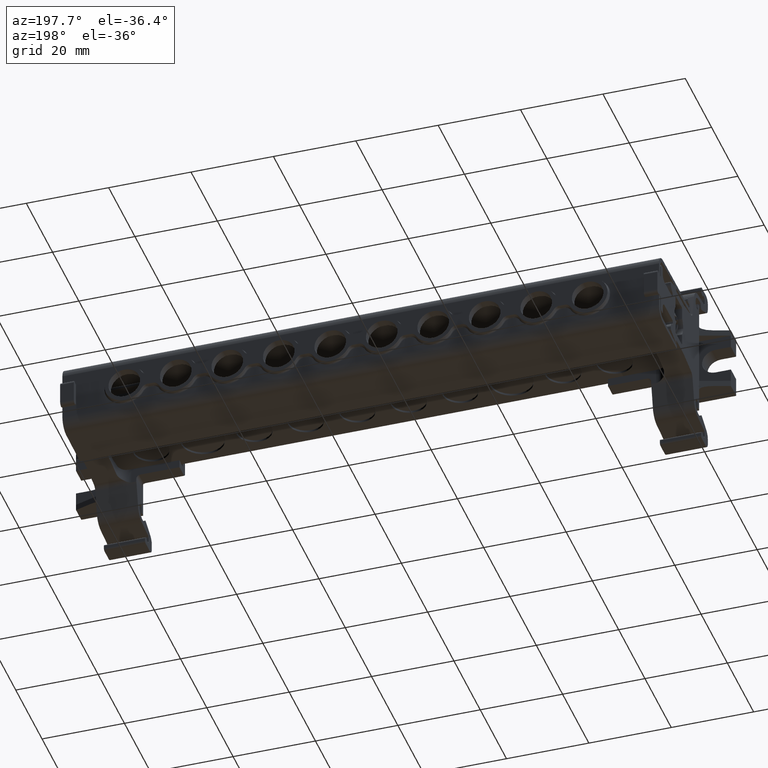
[diagram: clean part render]
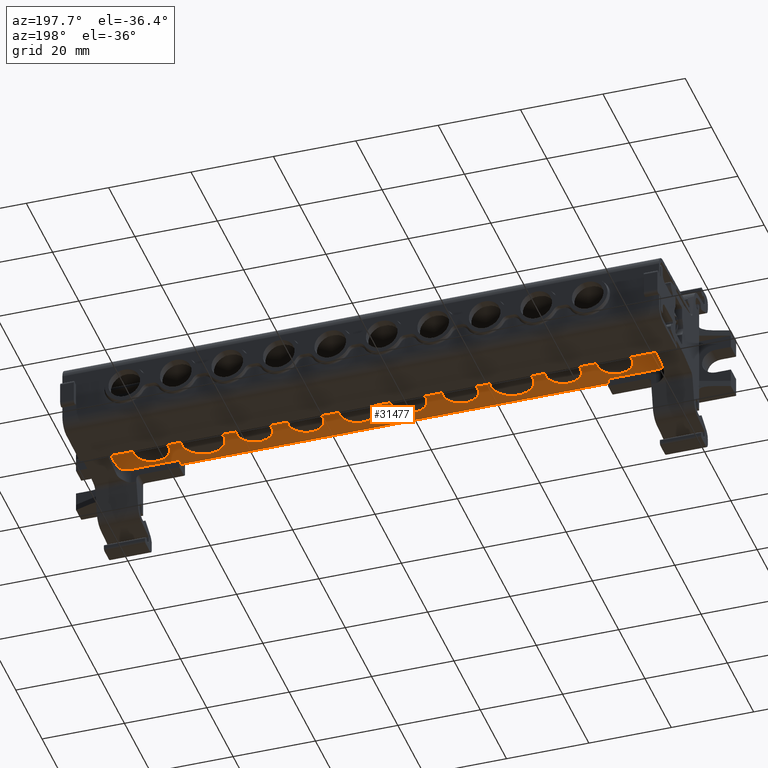
[diagram: same view with one face highlighted and labeled with its STEP entity id]
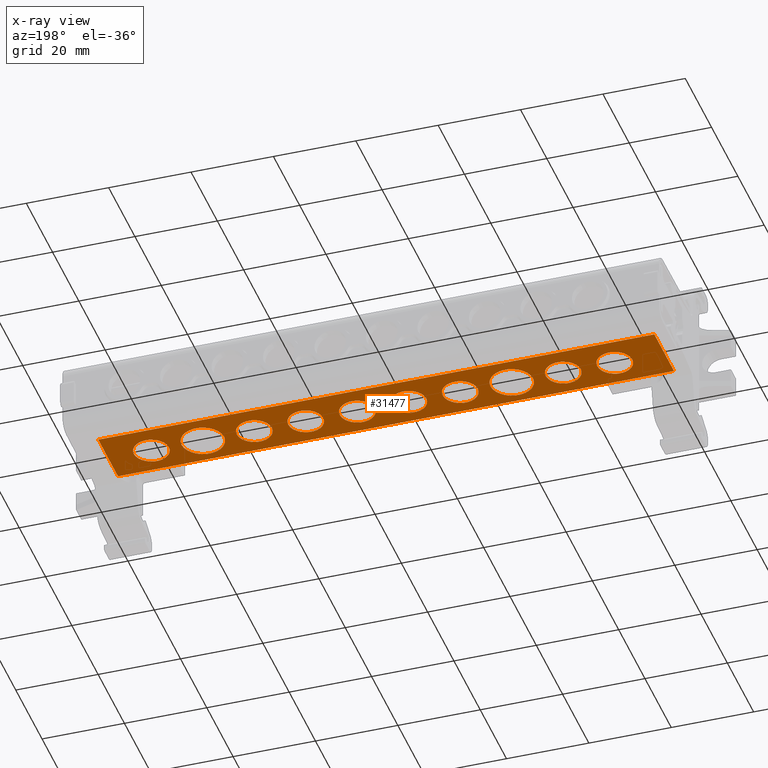
[diagram: x-ray of the same camera — body ghosted, the highlighted face saturated]
A machine part, auxiliary view. The second image highlights one B-rep face of the part: STEP entity #31477.
The next image is the same camera in x-ray: the body ghosted, the highlighted face saturated — about 0% of this face is hidden behind the body in this view.
In plain terms, the highlighted planar face has unit normal (0, 0, -1).
Its self-contained STEP definition (entity closure, byte-faithful):
#1507 = AXIS2_PLACEMENT_3D ( 'NONE', #18375, #18392, #18376 ) ;
#1508 = AXIS2_PLACEMENT_3D ( 'NONE', #29970, #29975, #30040 ) ;
#1534 = AXIS2_PLACEMENT_3D ( 'NONE', #29972, #27902, #27903 ) ;
#1542 = AXIS2_PLACEMENT_3D ( 'NONE', #28596, #28826, #28863 ) ;
#1543 = CIRCLE ( 'NONE', #1507, 4.250000000000005300 ) ;
#1545 = CIRCLE ( 'NONE', #1508, 4.250000000000006200 ) ;
#1546 = CIRCLE ( 'NONE', #1534, 4.250000000000003600 ) ;
#1554 = CIRCLE ( 'NONE', #1542, 4.250000000000007100 ) ;
#1584 = CIRCLE ( 'NONE', #1622, 4.250000000000003600 ) ;
#1585 = AXIS2_PLACEMENT_3D ( 'NONE', #18497, #18462, #18494 ) ;
#1587 = AXIS2_PLACEMENT_3D ( 'NONE', #18468, #18476, #18493 ) ;
#1592 = CIRCLE ( 'NONE', #1625, 4.250000000000007100 ) ;
#1594 = AXIS2_PLACEMENT_3D ( 'NONE', #18469, #18492, #18471 ) ;
#1612 = CIRCLE ( 'NONE', #1587, 4.250000000000003600 ) ;
#1622 = AXIS2_PLACEMENT_3D ( 'NONE', #18527, #17445, #17421 ) ;
#1625 = AXIS2_PLACEMENT_3D ( 'NONE', #18449, #18436, #18433 ) ;
#1627 = CIRCLE ( 'NONE', #1585, 5.149999999999995000 ) ;
#1630 = CIRCLE ( 'NONE', #1594, 5.150000000000002100 ) ;
#1636 = AXIS2_PLACEMENT_3D ( 'NONE', #17581, #17547, #17553 ) ;
#1660 = CIRCLE ( 'NONE', #1636, 4.250000000000003600 ) ;
#1830 = VECTOR ( 'NONE', #23456, 1000.000000000000000 ) ;
#1833 = VECTOR ( 'NONE', #23298, 1000.000000000000000 ) ;
#1844 = VECTOR ( 'NONE', #23442, 1000.000000000000000 ) ;
#1845 = VECTOR ( 'NONE', #23285, 1000.000000000000000 ) ;
#3574 = VERTEX_POINT ( 'NONE', #12729 ) ;
#3576 = VERTEX_POINT ( 'NONE', #12731 ) ;
#3578 = VERTEX_POINT ( 'NONE', #12734 ) ;
#3591 = VERTEX_POINT ( 'NONE', #12760 ) ;
#3600 = VERTEX_POINT ( 'NONE', #12802 ) ;
#3606 = VERTEX_POINT ( 'NONE', #12771 ) ;
#3621 = VERTEX_POINT ( 'NONE', #12777 ) ;
#3624 = VERTEX_POINT ( 'NONE', #12795 ) ;
#3625 = VERTEX_POINT ( 'NONE', #12780 ) ;
#4184 = EDGE_CURVE ( 'NONE', #33892, #3574, #20563, .T. ) ;
#4196 = EDGE_CURVE ( 'NONE', #32946, #32816, #7205, .T. ) ;
#4198 = EDGE_CURVE ( 'NONE', #3606, #3591, #20581, .T. ) ;
#4205 = EDGE_CURVE ( 'NONE', #32837, #32960, #7259, .T. ) ;
#4207 = EDGE_CURVE ( 'NONE', #33885, #3621, #20585, .T. ) ;
#4211 = EDGE_CURVE ( 'NONE', #33889, #3624, #20568, .T. ) ;
#4214 = EDGE_CURVE ( 'NONE', #3625, #3600, #20658, .T. ) ;
#4219 = EDGE_CURVE ( 'NONE', #33894, #33864, #20653, .T. ) ;
#4220 = EDGE_CURVE ( 'NONE', #33866, #32662, #20659, .T. ) ;
#4221 = EDGE_CURVE ( 'NONE', #3578, #3576, #20654, .T. ) ;
#4222 = EDGE_CURVE ( 'NONE', #33878, #33871, #20636, .T. ) ;
#4238 = EDGE_CURVE ( 'NONE', #33869, #32651, #20613, .T. ) ;
#4254 = EDGE_CURVE ( 'NONE', #32816, #32837, #7396, .T. ) ;
#6471 = EDGE_CURVE ( 'NONE', #32988, #32977, #15078, .T. ) ;
#7163 = CARTESIAN_POINT ( 'NONE',  ( -82.85269769582481600, 54.61882648292846900, 33.07764998369418700 ) ) ;
#7165 = DIRECTION ( 'NONE',  ( 0.0000000000000000000, 0.0000000000000000000, 1.000000000000000000 ) ) ;
#7186 = DIRECTION ( 'NONE',  ( 1.000000000000000000, 0.0000000000000000000, 0.0000000000000000000 ) ) ;
#7203 = DIRECTION ( 'NONE',  ( -1.000000000000000000, 0.0000000000000000000, -0.0000000000000000000 ) ) ;
#7205 = LINE ( 'NONE', #7211, #20553 ) ;
#7206 = DIRECTION ( 'NONE',  ( 1.000000000000000000, 0.0000000000000000000, 0.0000000000000000000 ) ) ;
#7211 = CARTESIAN_POINT ( 'NONE',  ( -56.95269769582482400, 47.41882648292847300, 33.07764998369418700 ) ) ;
#7215 = CARTESIAN_POINT ( 'NONE',  ( -70.35269769582483000, 54.61882648292846900, 33.07764998369418700 ) ) ;
#7235 = DIRECTION ( 'NONE',  ( 0.0000000000000000000, 0.0000000000000000000, 1.000000000000000000 ) ) ;
#7254 = CARTESIAN_POINT ( 'NONE',  ( -56.95269769582482400, 47.41882648292847300, 33.07764998369418700 ) ) ;
#7256 = CARTESIAN_POINT ( 'NONE',  ( -20.35269769582482300, 54.61882648292846900, 33.07764998369418700 ) ) ;
#7259 = LINE ( 'NONE', #7254, #20573 ) ;
#7260 = DIRECTION ( 'NONE',  ( 1.000000000000000000, 0.0000000000000000000, 0.0000000000000000000 ) ) ;
#7262 = DIRECTION ( 'NONE',  ( -1.000000000000000000, 0.0000000000000000000, -0.0000000000000000000 ) ) ;
#7264 = DIRECTION ( 'NONE',  ( 0.0000000000000000000, 0.0000000000000000000, 1.000000000000000000 ) ) ;
#7278 = DIRECTION ( 'NONE',  ( 0.0000000000000000000, 0.0000000000000000000, 1.000000000000000000 ) ) ;
#7283 = DIRECTION ( 'NONE',  ( 0.0000000000000000000, 0.0000000000000000000, 1.000000000000000000 ) ) ;
#7285 = DIRECTION ( 'NONE',  ( 1.000000000000000000, 0.0000000000000000000, 0.0000000000000000000 ) ) ;
#7286 = DIRECTION ( 'NONE',  ( 1.000000000000000000, 0.0000000000000000000, 0.0000000000000000000 ) ) ;
#7288 = CARTESIAN_POINT ( 'NONE',  ( -45.35269769582482300, 54.61882648292846900, 33.07764998369418700 ) ) ;
#7290 = CARTESIAN_POINT ( 'NONE',  ( -32.85269769582483000, 54.61882648292846900, 33.07764998369418700 ) ) ;
#7295 = DIRECTION ( 'NONE',  ( 1.000000000000000000, 0.0000000000000000000, 0.0000000000000000000 ) ) ;
#7297 = CARTESIAN_POINT ( 'NONE',  ( -57.85269769582482300, 54.61882648292846900, 33.07764998369418700 ) ) ;
#7300 = DIRECTION ( 'NONE',  ( 0.0000000000000000000, 0.0000000000000000000, 1.000000000000000000 ) ) ;
#7306 = CARTESIAN_POINT ( 'NONE',  ( 17.14730230417517400, 54.61882648292846900, 33.07764998369418700 ) ) ;
#7312 = DIRECTION ( 'NONE',  ( 0.0000000000000000000, 0.0000000000000000000, 1.000000000000000000 ) ) ;
#7317 = DIRECTION ( 'NONE',  ( 1.000000000000000000, 0.0000000000000000000, 0.0000000000000000000 ) ) ;
#7318 = DIRECTION ( 'NONE',  ( 0.0000000000000000000, 0.0000000000000000000, 1.000000000000000000 ) ) ;
#7325 = DIRECTION ( 'NONE',  ( 0.0000000000000000000, 0.0000000000000000000, 1.000000000000000000 ) ) ;
#7327 = CARTESIAN_POINT ( 'NONE',  ( -7.852697695824823600, 54.61882648292846900, 33.07764998369418700 ) ) ;
#7329 = DIRECTION ( 'NONE',  ( 1.000000000000000000, 0.0000000000000000000, 0.0000000000000000000 ) ) ;
#7332 = CARTESIAN_POINT ( 'NONE',  ( 29.64730230417517000, 54.61882648292846900, 33.07764998369418700 ) ) ;
#7333 = DIRECTION ( 'NONE',  ( 1.000000000000000000, 0.0000000000000000000, 0.0000000000000000000 ) ) ;
#7345 = CARTESIAN_POINT ( 'NONE',  ( 4.647302304175177300, 54.61882648292846900, 33.07764998369418700 ) ) ;
#7361 = DIRECTION ( 'NONE',  ( 0.0000000000000000000, 0.0000000000000000000, 1.000000000000000000 ) ) ;
#7362 = DIRECTION ( 'NONE',  ( 1.000000000000000000, 0.0000000000000000000, 0.0000000000000000000 ) ) ;
#7383 = CARTESIAN_POINT ( 'NONE',  ( -56.95269769582482400, 47.41882648292847300, 33.07764998369418700 ) ) ;
#7387 = DIRECTION ( 'NONE',  ( -1.000000000000000000, 0.0000000000000000000, -0.0000000000000000000 ) ) ;
#7396 = LINE ( 'NONE', #7383, #20683 ) ;
#8917 = EDGE_CURVE ( 'NONE', #33871, #33878, #1545, .T. ) ;
#8918 = EDGE_CURVE ( 'NONE', #3621, #33885, #1546, .T. ) ;
#8919 = EDGE_CURVE ( 'NONE', #3600, #3625, #1554, .T. ) ;
#8930 = EDGE_CURVE ( 'NONE', #32651, #33869, #1543, .T. ) ;
#8948 = EDGE_CURVE ( 'NONE', #3624, #33889, #1592, .T. ) ;
#8950 = EDGE_CURVE ( 'NONE', #32662, #33866, #1612, .T. ) ;
#8951 = EDGE_CURVE ( 'NONE', #33864, #33894, #1627, .T. ) ;
#8962 = EDGE_CURVE ( 'NONE', #3576, #3578, #1630, .T. ) ;
#8977 = EDGE_CURVE ( 'NONE', #3591, #3606, #1584, .T. ) ;
#9026 = EDGE_CURVE ( 'NONE', #3574, #33892, #1660, .T. ) ;
#9591 = VECTOR ( 'NONE', #25939, 1000.000000000000000 ) ;
#9597 = VECTOR ( 'NONE', #25912, 1000.000000000000000 ) ;
#10526 = FACE_OUTER_BOUND ( 'NONE', #16971, .T. ) ;
#10532 = FACE_BOUND ( 'NONE', #16731, .T. ) ;
#10533 = FACE_BOUND ( 'NONE', #16902, .T. ) ;
#10553 = FACE_BOUND ( 'NONE', #16823, .T. ) ;
#10554 = FACE_BOUND ( 'NONE', #16818, .T. ) ;
#10558 = FACE_BOUND ( 'NONE', #16874, .T. ) ;
#10559 = FACE_BOUND ( 'NONE', #16884, .T. ) ;
#10560 = PLANE ( 'NONE',  #20830 ) ;
#10567 = CARTESIAN_POINT ( 'NONE',  ( -56.95269769582482400, 62.41882648292848000, 33.07764998369418700 ) ) ;
#10568 = FACE_BOUND ( 'NONE', #16820, .T. ) ;
#10574 = FACE_BOUND ( 'NONE', #16841, .T. ) ;
#10576 = FACE_BOUND ( 'NONE', #16882, .T. ) ;
#10578 = FACE_BOUND ( 'NONE', #16808, .T. ) ;
#10609 = DIRECTION ( 'NONE',  ( -1.000000000000000000, 0.0000000000000000000, -0.0000000000000000000 ) ) ;
#10621 = DIRECTION ( 'NONE',  ( 0.0000000000000000000, 0.0000000000000000000, -1.000000000000000000 ) ) ;
#11888 = ORIENTED_EDGE ( 'NONE', *, *, #9026, .T. ) ;
#11889 = ORIENTED_EDGE ( 'NONE', *, *, #15471, .T. ) ;
#11891 = ORIENTED_EDGE ( 'NONE', *, *, #8930, .T. ) ;
#11895 = ORIENTED_EDGE ( 'NONE', *, *, #6471, .T. ) ;
#11896 = ORIENTED_EDGE ( 'NONE', *, *, #4222, .T. ) ;
#11897 = ORIENTED_EDGE ( 'NONE', *, *, #8917, .T. ) ;
#11900 = ORIENTED_EDGE ( 'NONE', *, *, #4220, .T. ) ;
#11901 = ORIENTED_EDGE ( 'NONE', *, *, #4205, .T. ) ;
#11902 = ORIENTED_EDGE ( 'NONE', *, *, #15484, .F. ) ;
#11904 = ORIENTED_EDGE ( 'NONE', *, *, #4214, .T. ) ;
#11905 = ORIENTED_EDGE ( 'NONE', *, *, #8919, .T. ) ;
#11908 = ORIENTED_EDGE ( 'NONE', *, *, #4254, .T. ) ;
#11914 = ORIENTED_EDGE ( 'NONE', *, *, #4238, .T. ) ;
#11917 = ORIENTED_EDGE ( 'NONE', *, *, #4196, .T. ) ;
#11919 = ORIENTED_EDGE ( 'NONE', *, *, #15588, .T. ) ;
#11927 = ORIENTED_EDGE ( 'NONE', *, *, #15451, .F. ) ;
#11938 = ORIENTED_EDGE ( 'NONE', *, *, #8950, .T. ) ;
#11944 = ORIENTED_EDGE ( 'NONE', *, *, #17322, .T. ) ;
#11949 = ORIENTED_EDGE ( 'NONE', *, *, #8951, .T. ) ;
#11950 = ORIENTED_EDGE ( 'NONE', *, *, #8918, .T. ) ;
#11954 = ORIENTED_EDGE ( 'NONE', *, *, #8948, .T. ) ;
#11961 = ORIENTED_EDGE ( 'NONE', *, *, #4198, .T. ) ;
#11968 = ORIENTED_EDGE ( 'NONE', *, *, #8962, .T. ) ;
#11976 = ORIENTED_EDGE ( 'NONE', *, *, #4221, .T. ) ;
#11989 = ORIENTED_EDGE ( 'NONE', *, *, #4211, .T. ) ;
#11993 = ORIENTED_EDGE ( 'NONE', *, *, #17346, .T. ) ;
#12004 = ORIENTED_EDGE ( 'NONE', *, *, #4184, .T. ) ;
#12032 = ORIENTED_EDGE ( 'NONE', *, *, #4219, .T. ) ;
#12045 = ORIENTED_EDGE ( 'NONE', *, *, #4207, .T. ) ;
#12062 = ORIENTED_EDGE ( 'NONE', *, *, #8977, .T. ) ;
#12729 = CARTESIAN_POINT ( 'NONE',  ( -87.10269769582481600, 54.61882648292846900, 33.07764998369418700 ) ) ;
#12731 = CARTESIAN_POINT ( 'NONE',  ( -63.00269769582482100, 54.61882648292846900, 33.07764998369418700 ) ) ;
#12734 = CARTESIAN_POINT ( 'NONE',  ( -52.70269769582482400, 54.61882648292846900, 33.07764998369418700 ) ) ;
#12760 = CARTESIAN_POINT ( 'NONE',  ( -74.60269769582484400, 54.61882648292846900, 33.07764998369418700 ) ) ;
#12771 = CARTESIAN_POINT ( 'NONE',  ( -66.10269769582483000, 54.61882648292846900, 33.07764998369418700 ) ) ;
#12777 = CARTESIAN_POINT ( 'NONE',  ( -49.60269769582483000, 54.61882648292846900, 33.07764998369418700 ) ) ;
#12780 = CARTESIAN_POINT ( 'NONE',  ( -28.60269769582482300, 54.61882648292846900, 33.07764998369418700 ) ) ;
#12795 = CARTESIAN_POINT ( 'NONE',  ( -24.60269769582483000, 54.61882648292846900, 33.07764998369418700 ) ) ;
#12802 = CARTESIAN_POINT ( 'NONE',  ( -37.10269769582483000, 54.61882648292846900, 33.07764998369418700 ) ) ;
#14373 = VECTOR ( 'NONE', #15144, 1000.000000000000000 ) ;
#15078 = LINE ( 'NONE', #15113, #14373 ) ;
#15113 = CARTESIAN_POINT ( 'NONE',  ( -94.95269769582481000, 62.41882648292848000, 33.07764998369418700 ) ) ;
#15144 = DIRECTION ( 'NONE',  ( 0.0000000000000000000, 1.000000000000000000, 0.0000000000000000000 ) ) ;
#15451 = EDGE_CURVE ( 'NONE', #32946, #33124, #23272, .T. ) ;
#15471 = EDGE_CURVE ( 'NONE', #33244, #33125, #23263, .T. ) ;
#15484 = EDGE_CURVE ( 'NONE', #32988, #32960, #23304, .T. ) ;
#15588 = EDGE_CURVE ( 'NONE', #33125, #33210, #23367, .T. ) ;
#16731 = EDGE_LOOP ( 'NONE', ( #12045, #11950 ) ) ;
#16808 = EDGE_LOOP ( 'NONE', ( #11961, #12062 ) ) ;
#16818 = EDGE_LOOP ( 'NONE', ( #12032, #11949 ) ) ;
#16820 = EDGE_LOOP ( 'NONE', ( #11904, #11905 ) ) ;
#16823 = EDGE_LOOP ( 'NONE', ( #11896, #11897 ) ) ;
#16841 = EDGE_LOOP ( 'NONE', ( #11976, #11968 ) ) ;
#16874 = EDGE_LOOP ( 'NONE', ( #11989, #11954 ) ) ;
#16882 = EDGE_LOOP ( 'NONE', ( #11900, #11938 ) ) ;
#16884 = EDGE_LOOP ( 'NONE', ( #11914, #11891 ) ) ;
#16902 = EDGE_LOOP ( 'NONE', ( #12004, #11888 ) ) ;
#16971 = EDGE_LOOP ( 'NONE', ( #11927, #11917, #11908, #11901, #11902, #11895, #11944, #11889, #11919, #11993 ) ) ;
#17322 = EDGE_CURVE ( 'NONE', #32977, #33244, #25956, .T. ) ;
#17346 = EDGE_CURVE ( 'NONE', #33210, #33124, #25909, .T. ) ;
#17421 = DIRECTION ( 'NONE',  ( 1.000000000000000000, 0.0000000000000000000, 0.0000000000000000000 ) ) ;
#17445 = DIRECTION ( 'NONE',  ( 0.0000000000000000000, 0.0000000000000000000, 1.000000000000000000 ) ) ;
#17547 = DIRECTION ( 'NONE',  ( 0.0000000000000000000, 0.0000000000000000000, 1.000000000000000000 ) ) ;
#17553 = DIRECTION ( 'NONE',  ( 1.000000000000000000, 0.0000000000000000000, 0.0000000000000000000 ) ) ;
#17581 = CARTESIAN_POINT ( 'NONE',  ( -82.85269769582481600, 54.61882648292846900, 33.07764998369418700 ) ) ;
#18375 = CARTESIAN_POINT ( 'NONE',  ( 4.647302304175177300, 54.61882648292846900, 33.07764998369418700 ) ) ;
#18376 = DIRECTION ( 'NONE',  ( 1.000000000000000000, 0.0000000000000000000, 0.0000000000000000000 ) ) ;
#18392 = DIRECTION ( 'NONE',  ( 0.0000000000000000000, 0.0000000000000000000, 1.000000000000000000 ) ) ;
#18433 = DIRECTION ( 'NONE',  ( 1.000000000000000000, 0.0000000000000000000, 0.0000000000000000000 ) ) ;
#18436 = DIRECTION ( 'NONE',  ( 0.0000000000000000000, 0.0000000000000000000, 1.000000000000000000 ) ) ;
#18449 = CARTESIAN_POINT ( 'NONE',  ( -20.35269769582482300, 54.61882648292846900, 33.07764998369418700 ) ) ;
#18462 = DIRECTION ( 'NONE',  ( 0.0000000000000000000, 0.0000000000000000000, 1.000000000000000000 ) ) ;
#18468 = CARTESIAN_POINT ( 'NONE',  ( 29.64730230417517000, 54.61882648292846900, 33.07764998369418700 ) ) ;
#18469 = CARTESIAN_POINT ( 'NONE',  ( -57.85269769582482300, 54.61882648292846900, 33.07764998369418700 ) ) ;
#18471 = DIRECTION ( 'NONE',  ( 1.000000000000000000, 0.0000000000000000000, 0.0000000000000000000 ) ) ;
#18476 = DIRECTION ( 'NONE',  ( 0.0000000000000000000, 0.0000000000000000000, 1.000000000000000000 ) ) ;
#18492 = DIRECTION ( 'NONE',  ( 0.0000000000000000000, 0.0000000000000000000, 1.000000000000000000 ) ) ;
#18493 = DIRECTION ( 'NONE',  ( 1.000000000000000000, 0.0000000000000000000, 0.0000000000000000000 ) ) ;
#18494 = DIRECTION ( 'NONE',  ( 1.000000000000000000, 0.0000000000000000000, 0.0000000000000000000 ) ) ;
#18497 = CARTESIAN_POINT ( 'NONE',  ( 17.14730230417517400, 54.61882648292846900, 33.07764998369418700 ) ) ;
#18527 = CARTESIAN_POINT ( 'NONE',  ( -70.35269769582483000, 54.61882648292846900, 33.07764998369418700 ) ) ;
#20543 = AXIS2_PLACEMENT_3D ( 'NONE', #7163, #7165, #7186 ) ;
#20553 = VECTOR ( 'NONE', #7203, 1000.000000000000000 ) ;
#20555 = AXIS2_PLACEMENT_3D ( 'NONE', #7288, #7278, #7285 ) ;
#20563 = CIRCLE ( 'NONE', #20543, 4.250000000000003600 ) ;
#20568 = CIRCLE ( 'NONE', #20598, 4.250000000000007100 ) ;
#20573 = VECTOR ( 'NONE', #7262, 1000.000000000000000 ) ;
#20581 = CIRCLE ( 'NONE', #20606, 4.250000000000003600 ) ;
#20585 = CIRCLE ( 'NONE', #20555, 4.250000000000003600 ) ;
#20598 = AXIS2_PLACEMENT_3D ( 'NONE', #7256, #7283, #7260 ) ;
#20606 = AXIS2_PLACEMENT_3D ( 'NONE', #7215, #7235, #7206 ) ;
#20613 = CIRCLE ( 'NONE', #20616, 4.250000000000005300 ) ;
#20616 = AXIS2_PLACEMENT_3D ( 'NONE', #7345, #7361, #7362 ) ;
#20618 = AXIS2_PLACEMENT_3D ( 'NONE', #7290, #7264, #7286 ) ;
#20629 = AXIS2_PLACEMENT_3D ( 'NONE', #7327, #7318, #7317 ) ;
#20632 = AXIS2_PLACEMENT_3D ( 'NONE', #7332, #7325, #7329 ) ;
#20636 = CIRCLE ( 'NONE', #20629, 4.250000000000006200 ) ;
#20647 = AXIS2_PLACEMENT_3D ( 'NONE', #7297, #7312, #7333 ) ;
#20649 = AXIS2_PLACEMENT_3D ( 'NONE', #7306, #7300, #7295 ) ;
#20653 = CIRCLE ( 'NONE', #20649, 5.149999999999995000 ) ;
#20654 = CIRCLE ( 'NONE', #20647, 5.150000000000002100 ) ;
#20658 = CIRCLE ( 'NONE', #20618, 4.250000000000007100 ) ;
#20659 = CIRCLE ( 'NONE', #20632, 4.250000000000003600 ) ;
#20683 = VECTOR ( 'NONE', #7387, 1000.000000000000000 ) ;
#20830 = AXIS2_PLACEMENT_3D ( 'NONE', #10567, #10621, #10609 ) ;
#21599 = CARTESIAN_POINT ( 'NONE',  ( -87.05269769582425000, 47.41882648292923400, 33.07764998369418700 ) ) ;
#21617 = CARTESIAN_POINT ( 'NONE',  ( -94.95269769582459700, 61.91882648293060500, 33.07764998369418700 ) ) ;
#21641 = CARTESIAN_POINT ( 'NONE',  ( -94.95269769582408500, 47.41882648293007200, 33.07764998369418700 ) ) ;
#21671 = CARTESIAN_POINT ( 'NONE',  ( 40.04730230417586500, 47.41882648293046300, 33.07764998369418700 ) ) ;
#21698 = CARTESIAN_POINT ( 'NONE',  ( -94.95269769582439800, 56.91882648293357500, 33.07764998369418700 ) ) ;
#21758 = CARTESIAN_POINT ( 'NONE',  ( 40.04730230417558800, 56.91882648293278600, 33.07764998369418700 ) ) ;
#21783 = CARTESIAN_POINT ( 'NONE',  ( 40.04730230417598600, 62.41882648292848000, 33.07764998369418700 ) ) ;
#21888 = CARTESIAN_POINT ( 'NONE',  ( 40.04730230417558100, 61.91882648292983000, 33.07764998369418700 ) ) ;
#21912 = CARTESIAN_POINT ( 'NONE',  ( -94.95269769582459700, 62.41882648292848000, 33.07764998369418700 ) ) ;
#22256 = CARTESIAN_POINT ( 'NONE',  ( 33.89730230417517700, 54.61882648292846900, 33.07764998369418700 ) ) ;
#22259 = CARTESIAN_POINT ( 'NONE',  ( -78.60269769582481600, 54.61882648292846900, 33.07764998369418700 ) ) ;
#22260 = CARTESIAN_POINT ( 'NONE',  ( 11.99730230417517900, 54.61882648292846900, 33.07764998369418700 ) ) ;
#22282 = CARTESIAN_POINT ( 'NONE',  ( -12.10269769582483200, 54.61882648292846900, 33.07764998369418700 ) ) ;
#22286 = CARTESIAN_POINT ( 'NONE',  ( -3.602697695824817400, 54.61882648292846900, 33.07764998369418700 ) ) ;
#22289 = CARTESIAN_POINT ( 'NONE',  ( -41.10269769582482300, 54.61882648292846900, 33.07764998369418700 ) ) ;
#22290 = CARTESIAN_POINT ( 'NONE',  ( -16.10269769582481600, 54.61882648292846900, 33.07764998369418700 ) ) ;
#22291 = CARTESIAN_POINT ( 'NONE',  ( 22.29730230417516900, 54.61882648292846900, 33.07764998369418700 ) ) ;
#22302 = CARTESIAN_POINT ( 'NONE',  ( 8.897302304175182600, 54.61882648292846900, 33.07764998369418700 ) ) ;
#22949 = CARTESIAN_POINT ( 'NONE',  ( 0.3973023041751715900, 54.61882648292846900, 33.07764998369418700 ) ) ;
#22969 = CARTESIAN_POINT ( 'NONE',  ( 25.39730230417516700, 54.61882648292846900, 33.07764998369418700 ) ) ;
#23120 = CARTESIAN_POINT ( 'NONE',  ( 32.14730230417600900, 47.41882648292907700, 33.07764998369418700 ) ) ;
#23263 = LINE ( 'NONE', #23276, #1845 ) ;
#23272 = LINE ( 'NONE', #23289, #1833 ) ;
#23276 = CARTESIAN_POINT ( 'NONE',  ( -2.425290440254690400, 62.41882648292848000, 33.07764998369418700 ) ) ;
#23285 = DIRECTION ( 'NONE',  ( 1.000000000000000000, 0.0000000000000000000, 0.0000000000000000000 ) ) ;
#23289 = CARTESIAN_POINT ( 'NONE',  ( 40.04730230417604300, 70.57882648293222900, 33.07764998369418700 ) ) ;
#23298 = DIRECTION ( 'NONE',  ( 7.897574987183420400E-015, 1.000000000000000000, -0.0000000000000000000 ) ) ;
#23304 = LINE ( 'NONE', #23400, #1830 ) ;
#23367 = LINE ( 'NONE', #23389, #1844 ) ;
#23389 = CARTESIAN_POINT ( 'NONE',  ( 40.04730230417598600, 62.41882648292848000, 33.07764998369418700 ) ) ;
#23400 = CARTESIAN_POINT ( 'NONE',  ( -94.95269769582388600, 70.57882648293299600, 33.07764998369418700 ) ) ;
#23442 = DIRECTION ( 'NONE',  ( -0.0000000000000000000, -1.000000000000000000, -0.0000000000000000000 ) ) ;
#23456 = DIRECTION ( 'NONE',  ( -7.897574987183420400E-015, -1.000000000000000000, -0.0000000000000000000 ) ) ;
#25909 = LINE ( 'NONE', #25920, #9597 ) ;
#25912 = DIRECTION ( 'NONE',  ( -0.0000000000000000000, -1.000000000000000000, -0.0000000000000000000 ) ) ;
#25920 = CARTESIAN_POINT ( 'NONE',  ( 40.04730230417517600, 62.41882648292848000, 33.07764998369418700 ) ) ;
#25932 = CARTESIAN_POINT ( 'NONE',  ( -94.95269769582481000, 62.41882648292848000, 33.07764998369418700 ) ) ;
#25939 = DIRECTION ( 'NONE',  ( 0.0000000000000000000, 1.000000000000000000, 0.0000000000000000000 ) ) ;
#25956 = LINE ( 'NONE', #25932, #9591 ) ;
#27902 = DIRECTION ( 'NONE',  ( 0.0000000000000000000, 0.0000000000000000000, 1.000000000000000000 ) ) ;
#27903 = DIRECTION ( 'NONE',  ( 1.000000000000000000, 0.0000000000000000000, 0.0000000000000000000 ) ) ;
#28596 = CARTESIAN_POINT ( 'NONE',  ( -32.85269769582483000, 54.61882648292846900, 33.07764998369418700 ) ) ;
#28826 = DIRECTION ( 'NONE',  ( 0.0000000000000000000, 0.0000000000000000000, 1.000000000000000000 ) ) ;
#28863 = DIRECTION ( 'NONE',  ( 1.000000000000000000, 0.0000000000000000000, 0.0000000000000000000 ) ) ;
#29970 = CARTESIAN_POINT ( 'NONE',  ( -7.852697695824823600, 54.61882648292846900, 33.07764998369418700 ) ) ;
#29972 = CARTESIAN_POINT ( 'NONE',  ( -45.35269769582482300, 54.61882648292846900, 33.07764998369418700 ) ) ;
#29975 = DIRECTION ( 'NONE',  ( 0.0000000000000000000, 0.0000000000000000000, 1.000000000000000000 ) ) ;
#30040 = DIRECTION ( 'NONE',  ( 1.000000000000000000, 0.0000000000000000000, 0.0000000000000000000 ) ) ;
#31477 = ADVANCED_FACE ( 'NONE', ( #10532, #10568, #10558, #10574, #10578, #10533, #10576, #10554, #10559, #10526, #10553 ), #10560, .T. ) ;
#32651 = VERTEX_POINT ( 'NONE', #22949 ) ;
#32662 = VERTEX_POINT ( 'NONE', #22969 ) ;
#32816 = VERTEX_POINT ( 'NONE', #23120 ) ;
#32837 = VERTEX_POINT ( 'NONE', #21599 ) ;
#32946 = VERTEX_POINT ( 'NONE', #21671 ) ;
#32960 = VERTEX_POINT ( 'NONE', #21641 ) ;
#32977 = VERTEX_POINT ( 'NONE', #21617 ) ;
#32988 = VERTEX_POINT ( 'NONE', #21698 ) ;
#33124 = VERTEX_POINT ( 'NONE', #21758 ) ;
#33125 = VERTEX_POINT ( 'NONE', #21783 ) ;
#33210 = VERTEX_POINT ( 'NONE', #21888 ) ;
#33244 = VERTEX_POINT ( 'NONE', #21912 ) ;
#33864 = VERTEX_POINT ( 'NONE', #22260 ) ;
#33866 = VERTEX_POINT ( 'NONE', #22256 ) ;
#33869 = VERTEX_POINT ( 'NONE', #22302 ) ;
#33871 = VERTEX_POINT ( 'NONE', #22282 ) ;
#33878 = VERTEX_POINT ( 'NONE', #22286 ) ;
#33885 = VERTEX_POINT ( 'NONE', #22289 ) ;
#33889 = VERTEX_POINT ( 'NONE', #22290 ) ;
#33892 = VERTEX_POINT ( 'NONE', #22259 ) ;
#33894 = VERTEX_POINT ( 'NONE', #22291 ) ;